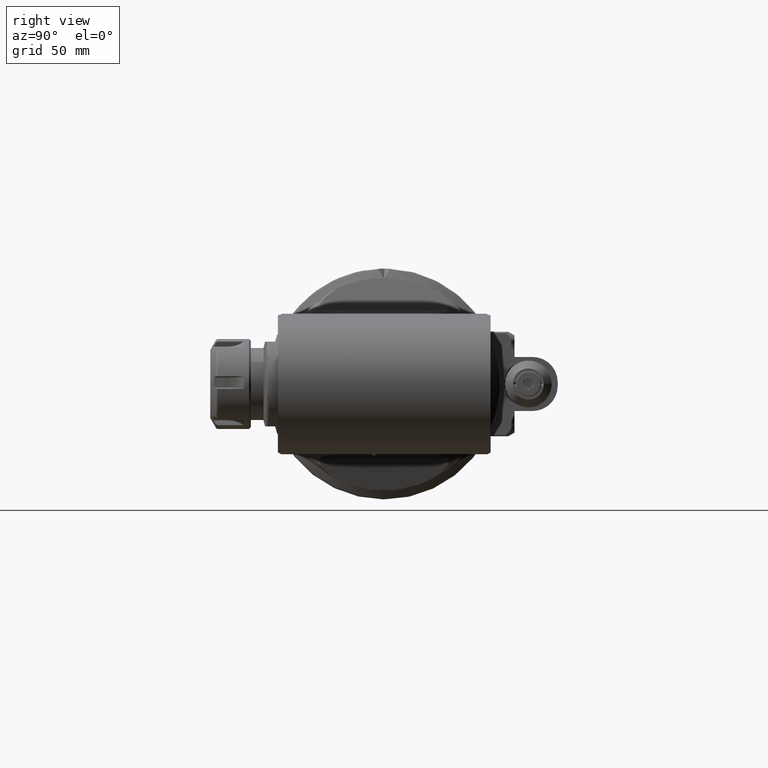
[diagram: clean part render]
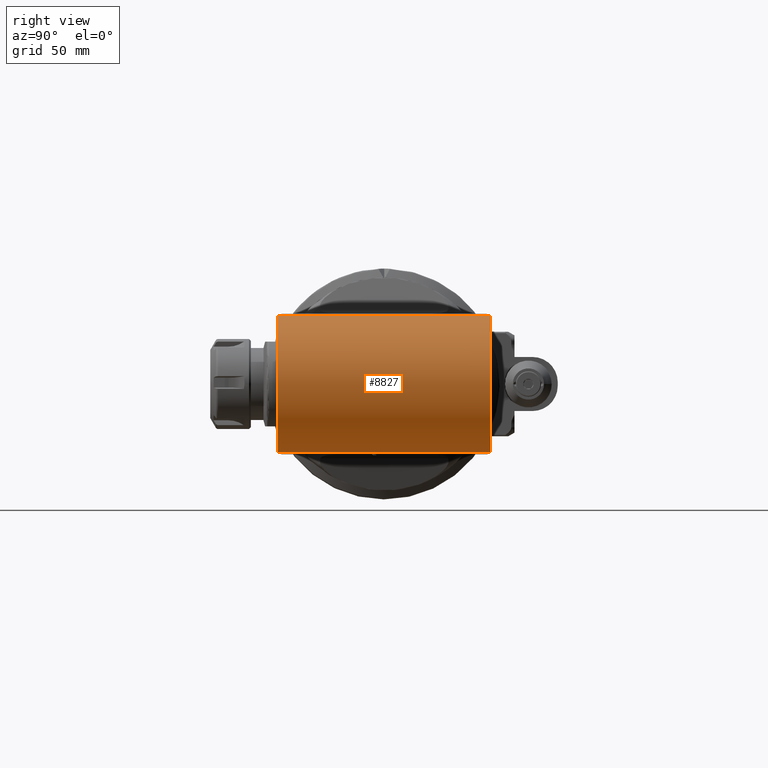
[diagram: same view with one face highlighted and labeled with its STEP entity id]
A machine part, right view. The second image highlights one B-rep face of the part: STEP entity #8827.
In plain terms, the highlighted cylindrical surface (partial cylindrical patch) has radius 38 mm, axis along (-0, 1, 0).
Its self-contained STEP definition (entity closure, byte-faithful):
#409=CYLINDRICAL_SURFACE('',#9746,38.);
#883=CIRCLE('',#9728,38.);
#894=CIRCLE('',#9747,38.);
#1377=FACE_OUTER_BOUND('',#1943,.T.);
#1943=EDGE_LOOP('',(#7593,#7594,#7595,#7596));
#2676=LINE('',#29988,#3224);
#2685=LINE('',#30139,#3233);
#3224=VECTOR('',#11833,118.);
#3233=VECTOR('',#11892,118.);
#4013=VERTEX_POINT('',#29985);
#4014=VERTEX_POINT('',#29987);
#4019=VERTEX_POINT('',#30013);
#4049=VERTEX_POINT('',#30138);
#5219=EDGE_CURVE('',#4014,#4013,#2676,.T.);
#5228=EDGE_CURVE('',#4014,#4019,#883,.T.);
#5265=EDGE_CURVE('',#4049,#4019,#2685,.T.);
#5269=EDGE_CURVE('',#4049,#4013,#894,.T.);
#7593=ORIENTED_EDGE('',*,*,#5219,.T.);
#7594=ORIENTED_EDGE('',*,*,#5269,.F.);
#7595=ORIENTED_EDGE('',*,*,#5265,.T.);
#7596=ORIENTED_EDGE('',*,*,#5228,.F.);
#8827=ADVANCED_FACE('',(#1377),#409,.T.);
#9728=AXIS2_PLACEMENT_3D('',#30014,#11849,#11850);
#9746=AXIS2_PLACEMENT_3D('',#30148,#11894,#11895);
#9747=AXIS2_PLACEMENT_3D('',#30149,#11896,#11897);
#11833=DIRECTION('',(1.348826888223E-14,-1.,0.));
#11849=DIRECTION('center_axis',(0.,1.,0.));
#11850=DIRECTION('ref_axis',(0.0871557427475362,0.,0.996194698091756));
#11892=DIRECTION('',(-1.336783791006E-14,1.,0.));
#11894=DIRECTION('center_axis',(0.,1.,0.));
#11895=DIRECTION('ref_axis',(1.,0.,-2.07497281830382E-14));
#11896=DIRECTION('center_axis',(0.,-1.,0.));
#11897=DIRECTION('ref_axis',(1.,0.,0.));
#29985=CARTESIAN_POINT('',(113.3119182244,-59.,37.85539852749));
#29987=CARTESIAN_POINT('',(113.3119182244,59.,37.85539852749));
#29988=CARTESIAN_POINT('',(113.3119182244,59.,37.85539852749));
#30013=CARTESIAN_POINT('',(113.3119182244,59.,-37.85539852749));
#30014=CARTESIAN_POINT('Origin',(110.,59.,0.));
#30138=CARTESIAN_POINT('',(113.3119182244,-59.,-37.85539852749));
#30139=CARTESIAN_POINT('',(113.3119182244,-59.,-37.85539852749));
#30148=CARTESIAN_POINT('Origin',(110.,-70.8000024,0.));
#30149=CARTESIAN_POINT('Origin',(110.,-59.,0.));